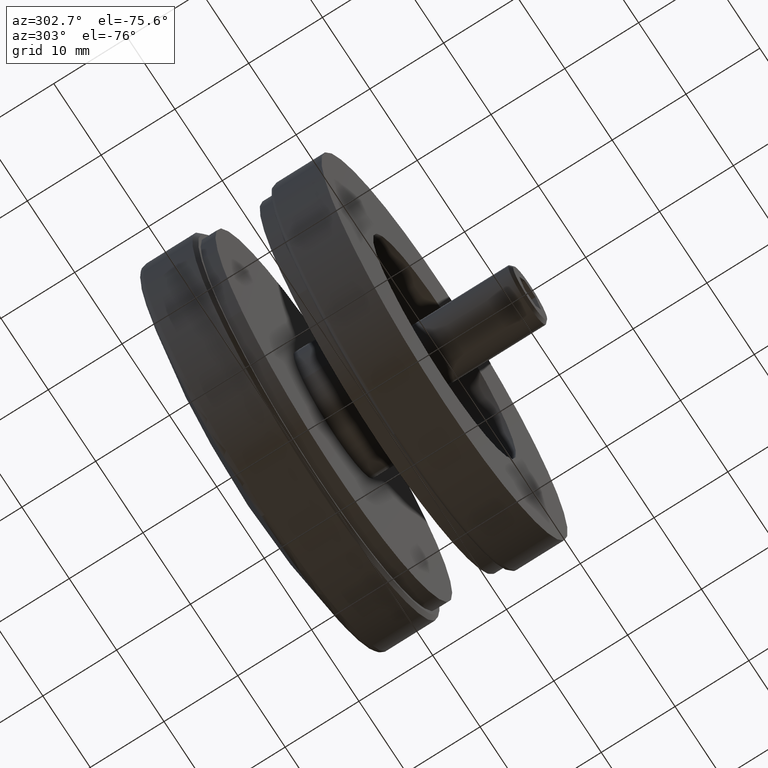
[diagram: clean part render]
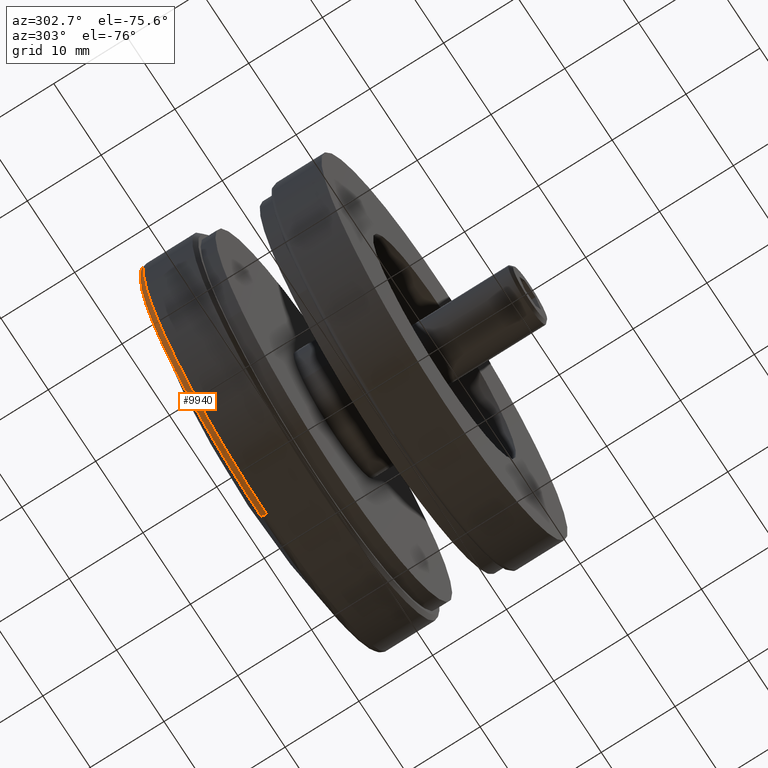
[diagram: same view with one face highlighted and labeled with its STEP entity id]
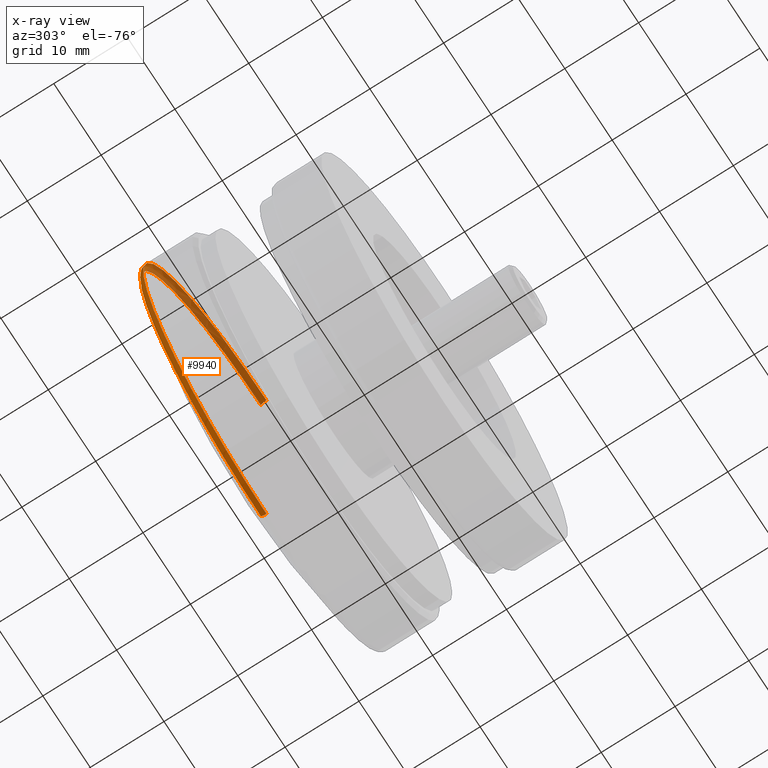
[diagram: x-ray of the same camera — body ghosted, the highlighted face saturated]
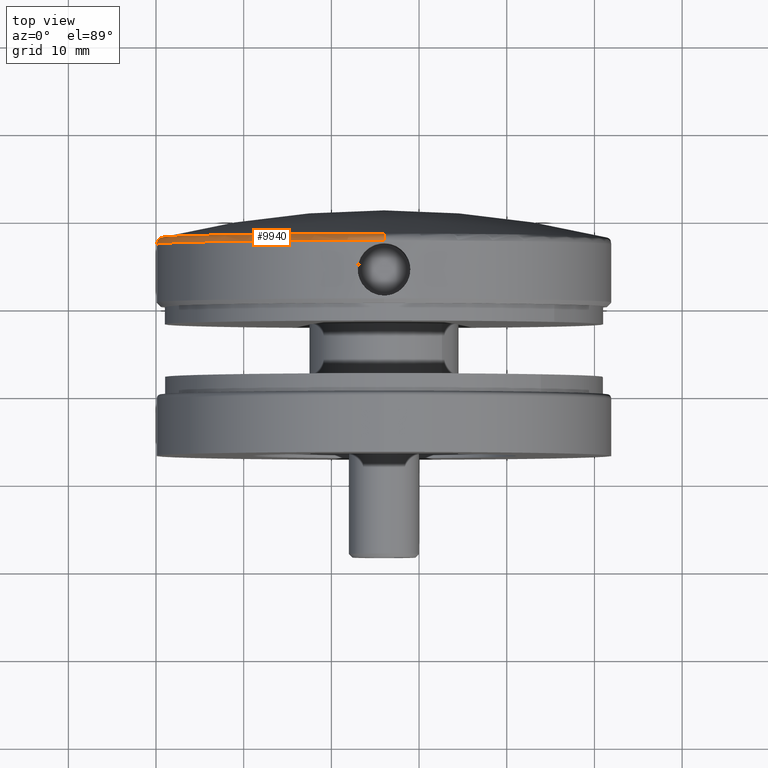
[diagram: same view with one face highlighted and labeled with its STEP entity id]
A machine part, auxiliary view. The second image highlights one B-rep face of the part: STEP entity #9940.
The next image is the same camera in x-ray: the body ghosted, the highlighted face saturated — about 46% of this face is hidden behind the body in this view.
A second angle (top view) of the same face is appended — the face is thin or edge-on in the first view.
In plain terms, the highlighted toroidal blend (fillet) surface has major radius 25.2 mm and minor (blend) radius 0.8 mm.
Its self-contained STEP definition (entity closure, byte-faithful):
#24 = CIRCLE ( 'NONE', #14830, 0.7999999999999986000 ) ;
#53 = DIRECTION ( 'NONE',  ( 0.0000000000000000000, 0.0000000000000000000, -1.000000000000000000 ) ) ;
#664 = EDGE_CURVE ( 'NONE', #7021, #13294, #1218, .T. ) ;
#736 = AXIS2_PLACEMENT_3D ( 'NONE', #5714, #11365, #11511 ) ;
#1212 = DIRECTION ( 'NONE',  ( 1.000000000000000000, 0.0000000000000000000, -1.224646799147353200E-016 ) ) ;
#1218 = CIRCLE ( 'NONE', #4711, 0.7999999999999986000 ) ;
#3059 = FACE_OUTER_BOUND ( 'NONE', #7592, .T. ) ;
#3471 = CARTESIAN_POINT ( 'NONE',  ( 26.00000000000000400, 7.127234245336927300, 25.19999999999999900 ) ) ;
#3778 = DIRECTION ( 'NONE',  ( 0.0000000000000000000, 0.0000000000000000000, -1.000000000000000000 ) ) ;
#3828 = CARTESIAN_POINT ( 'NONE',  ( 26.00000000000000000, 7.127234245336927300, 0.0000000000000000000 ) ) ;
#3878 = VERTEX_POINT ( 'NONE', #4262 ) ;
#4262 = CARTESIAN_POINT ( 'NONE',  ( 26.00000000000000000, 7.903793675071546500, -25.39223800896348100 ) ) ;
#4417 = DIRECTION ( 'NONE',  ( 0.0000000000000000000, 0.0000000000000000000, 1.000000000000000000 ) ) ;
#4419 = ORIENTED_EDGE ( 'NONE', *, *, #5788, .F. ) ;
#4711 = AXIS2_PLACEMENT_3D ( 'NONE', #3471, #1212, #53 ) ;
#4802 = AXIS2_PLACEMENT_3D ( 'NONE', #3828, #6067, #3778 ) ;
#4821 = DIRECTION ( 'NONE',  ( -0.0000000000000000000, -1.000000000000000000, -0.0000000000000000000 ) ) ;
#4895 = VERTEX_POINT ( 'NONE', #14396 ) ;
#5139 = ORIENTED_EDGE ( 'NONE', *, *, #9139, .T. ) ;
#5174 = DIRECTION ( 'NONE',  ( 0.0000000000000000000, 1.000000000000000000, 0.0000000000000000000 ) ) ;
#5402 = VERTEX_POINT ( 'NONE', #7333 ) ;
#5714 = CARTESIAN_POINT ( 'NONE',  ( 26.00000000000000400, 7.903793675071546500, 0.0000000000000000000 ) ) ;
#5733 = TOROIDAL_SURFACE ( 'NONE', #4802, 25.19999999999999900, 0.8000000000000000400 ) ;
#5788 = EDGE_CURVE ( 'NONE', #3878, #4895, #12008, .T. ) ;
#6067 = DIRECTION ( 'NONE',  ( -0.0000000000000000000, -1.000000000000000000, -0.0000000000000000000 ) ) ;
#6157 = CARTESIAN_POINT ( 'NONE',  ( 26.00000000000000400, 7.903793675071546500, 25.39223800896348100 ) ) ;
#6920 = CIRCLE ( 'NONE', #9154, 26.00000000000000000 ) ;
#7021 = VERTEX_POINT ( 'NONE', #6157 ) ;
#7043 = ORIENTED_EDGE ( 'NONE', *, *, #664, .F. ) ;
#7333 = CARTESIAN_POINT ( 'NONE',  ( 26.00000000000000000, 7.127234245336927300, -26.00000000000000000 ) ) ;
#7592 = EDGE_LOOP ( 'NONE', ( #7043, #9122, #4419, #5139, #14544 ) ) ;
#7712 = DIRECTION ( 'NONE',  ( -1.000000000000000000, 0.0000000000000000000, 0.0000000000000000000 ) ) ;
#8069 = CARTESIAN_POINT ( 'NONE',  ( 26.00000000000000000, 7.127234245336927300, 0.0000000000000000000 ) ) ;
#8119 = DIRECTION ( 'NONE',  ( 0.0000000000000000000, 0.0000000000000000000, -1.000000000000000000 ) ) ;
#8131 = CARTESIAN_POINT ( 'NONE',  ( 26.00000000000000400, 7.903793675071546500, 0.0000000000000000000 ) ) ;
#9122 = ORIENTED_EDGE ( 'NONE', *, *, #12886, .F. ) ;
#9139 = EDGE_CURVE ( 'NONE', #3878, #5402, #24, .T. ) ;
#9154 = AXIS2_PLACEMENT_3D ( 'NONE', #8069, #4821, #8119 ) ;
#9427 = AXIS2_PLACEMENT_3D ( 'NONE', #8131, #5174, #11174 ) ;
#9940 = ADVANCED_FACE ( 'NONE', ( #3059 ), #5733, .T. ) ;
#10699 = CARTESIAN_POINT ( 'NONE',  ( 26.00000000000000400, 7.127234245336927300, 26.00000000000000000 ) ) ;
#11174 = DIRECTION ( 'NONE',  ( 0.0000000000000000000, 0.0000000000000000000, -1.000000000000000000 ) ) ;
#11182 = CIRCLE ( 'NONE', #9427, 25.39223800896348100 ) ;
#11365 = DIRECTION ( 'NONE',  ( 0.0000000000000000000, 1.000000000000000000, 0.0000000000000000000 ) ) ;
#11511 = DIRECTION ( 'NONE',  ( 0.0000000000000000000, 0.0000000000000000000, -1.000000000000000000 ) ) ;
#12008 = CIRCLE ( 'NONE', #736, 25.39223800896348100 ) ;
#12886 = EDGE_CURVE ( 'NONE', #4895, #7021, #11182, .T. ) ;
#13180 = EDGE_CURVE ( 'NONE', #13294, #5402, #6920, .T. ) ;
#13294 = VERTEX_POINT ( 'NONE', #10699 ) ;
#14396 = CARTESIAN_POINT ( 'NONE',  ( 0.6077619910365237300, 7.903793675071553600, 0.0000000000000000000 ) ) ;
#14544 = ORIENTED_EDGE ( 'NONE', *, *, #13180, .F. ) ;
#14738 = CARTESIAN_POINT ( 'NONE',  ( 26.00000000000000000, 7.127234245336927300, -25.19999999999999900 ) ) ;
#14830 = AXIS2_PLACEMENT_3D ( 'NONE', #14738, #7712, #4417 ) ;